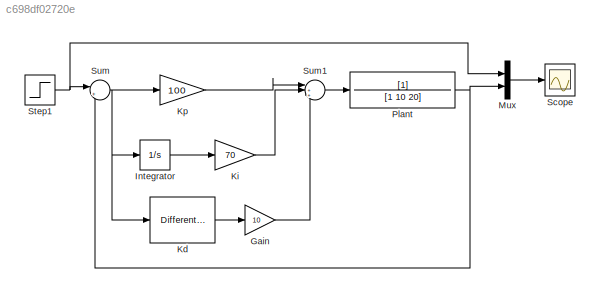
MODEL slx_c698df02720e
KIND model
CONFIG AbsTol = auto
CONFIG EnableMultiTasking = off
CONFIG FixedStep = auto
CONFIG MaxStep = auto
CONFIG MinStep = auto
CONFIG RelTol = 1e-3
CONFIG SampleTimeConstraint = Unconstrained
CONFIG SolverName = VariableStepAuto
CONFIG StartTime = 0.0
CONFIG StopTime = 10.0
BLOCK [Scope]  Scope
  Floating = off
  NumInputPorts = 1
  ScopeSpecificationString = Simulink.scopes.TimeScopeBlockCfg('CurrentConfiguration', extmgr.ConfigurationSet(extmgr.Configuration('Core','General UI',true),extmgr.Configuration('Core','Source UI',true),extmgr.Configuration('Sources','WiredSimulink',true),extmgr.Configuration('Visuals','Time Domain',true,'SerializedDisplays',{struct('MinYLimReal','-0.13496','MaxYLimReal','1.21466','YLabelReal','','MinYLimMag','0.00000','MaxY...<+1445ch>
BLOCK [Gain] Gain
  Gain = 10
BLOCK [Integrator] Integrator
BLOCK [Reference] Kd  REF=dspfdesign/Differentiator Filter
  SourceBlock = dspfdesign/Differentiator Filter
  SourceType = dsp.simulink.Differentiator
BLOCK [Gain] Ki
  Gain = 70
BLOCK [Gain] Kp
  Gain = 100
BLOCK [Mux] Mux
  DisplayOption = bar
  Inputs = 2
BLOCK [TransferFcn] Plant
  Denominator = [1 10 20]
BLOCK [Step] Step1
  SampleTime = 0
BLOCK [Sum] Sum
  Inputs = |+-
BLOCK [Sum] Sum1
  Inputs = |+++
LINE Gain:1 -> Sum1:3
LINE Integrator:1 -> Ki:1
LINE Kd:1 -> Gain:1
LINE Ki:1 -> Sum1:2
LINE Kp:1 -> Sum1:1
LINE Mux:1 ->  Scope:1
NET Plant:1 -> Mux:2, Sum:2
NET Step1:1 -> Mux:1, Sum:1
LINE Sum1:1 -> Plant:1
NET Sum:1 -> Integrator:1, Kd:1, Kp:1
note: NET lines group one-source signal fan-out (src -> all destinations, sorted); 1:1 wires keep LINE
